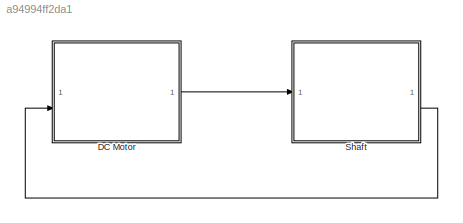
MODEL slx_a94994ff2da1
KIND model
CONFIG AbsTol = auto
CONFIG EnableMultiTasking = off
CONFIG FixedStep = auto
CONFIG InitFcn = Tstall = 20;\nNoLoadSpeed = 20;\nJ_inertia = 1;\nb_damping = 0;\nload('MyTest.mat')\nVn = 30; \nwNL = NoLoadSpeed; \nK = Vn/wNL;\nR = Vn^2/wNL/Tstall;\nL = 1e-5;
CONFIG MaxStep = auto
CONFIG MinStep = auto
CONFIG RelTol = 1e-3
CONFIG SampleTimeConstraint = Unconstrained
CONFIG SolverName = VariableStepAuto
CONFIG StartTime = 0.0
CONFIG StopTime = 10.0
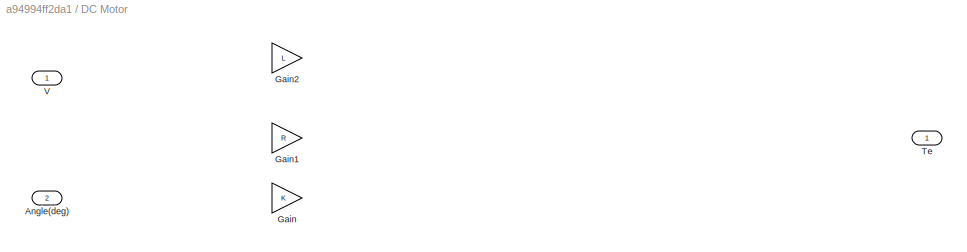
BLOCK [SubSystem] DC Motor
BLOCK [Inport] DC Motor/Angle(deg)
  Port = 2
BLOCK [Gain] DC Motor/Gain
  Gain = K
BLOCK [Gain] DC Motor/Gain1
  Gain = R
BLOCK [Gain] DC Motor/Gain2
  Gain = L
BLOCK [Outport] DC Motor/Te
BLOCK [Inport] DC Motor/V
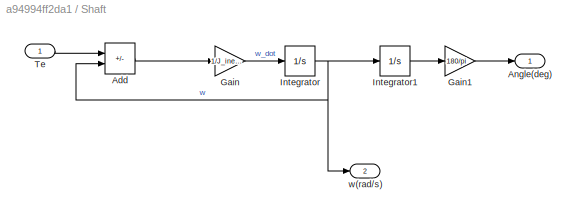
BLOCK [SubSystem] Shaft
BLOCK [Sum] Shaft/Add
  IconShape = rectangular
  Inputs = +-
BLOCK [Outport] Shaft/Angle(deg)
BLOCK [Gain] Shaft/Gain
  Gain = 1/J_inertia
BLOCK [Gain] Shaft/Gain1
  Gain = 180/pi
BLOCK [Integrator] Shaft/Integrator
BLOCK [Integrator] Shaft/Integrator1
BLOCK [Inport] Shaft/Te
BLOCK [Outport] Shaft/w(rad//s)
  Port = 2
LINE DC Motor:1 -> Shaft:1
LINE Shaft/Add:1 -> Shaft/Gain:1
LINE Shaft/Gain1:1 -> Shaft/Angle(deg):1
LINE Shaft/Gain:1 -> Shaft/Integrator:1
LINE Shaft/Integrator1:1 -> Shaft/Gain1:1
NET Shaft/Integrator:1 -> Shaft/Add:2, Shaft/Integrator1:1, Shaft/w(rad//s):1
LINE Shaft/Te:1 -> Shaft/Add:1
LINE Shaft:2 -> DC Motor:2
note: NET lines group one-source signal fan-out (src -> all destinations, sorted); 1:1 wires keep LINE
